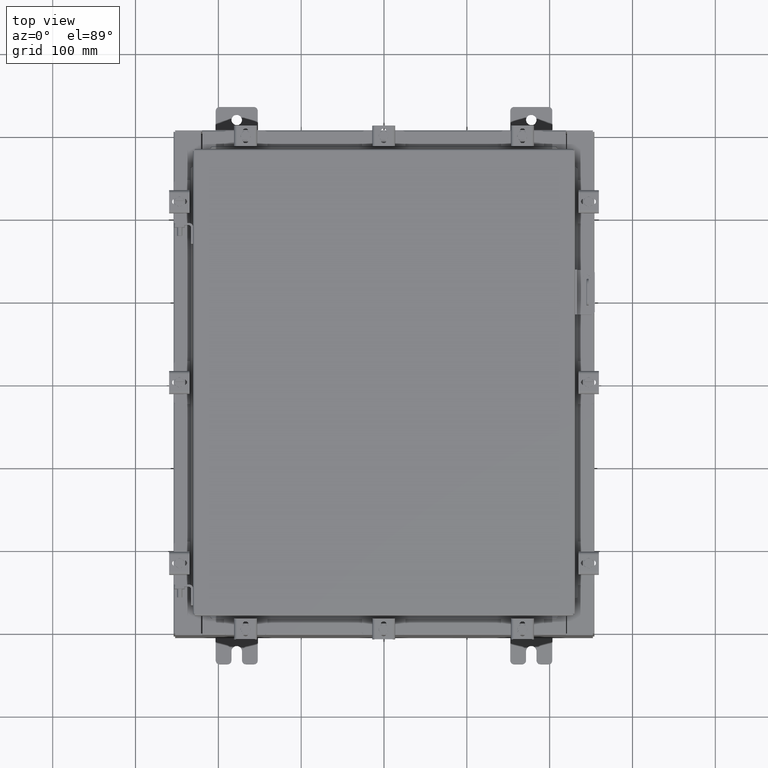
[diagram: clean part render]
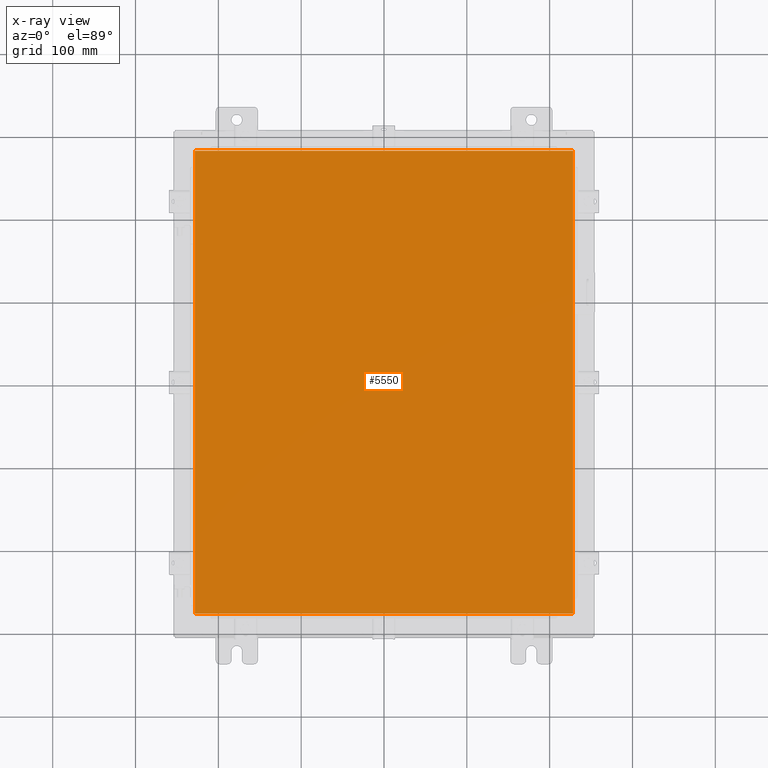
[diagram: x-ray — body ghosted, one internal face saturated and labeled with its STEP entity id]
A machine part, top view, then the same camera in x-ray: the body is ghosted and one INTERNAL B-rep face — a face not visible from any outside direction — is saturated and labeled: STEP entity #5550.
In plain terms, the highlighted planar face has unit normal (0, 0, -1).
Its self-contained STEP definition (entity closure, byte-faithful):
#695 = EDGE_CURVE ( 'NONE', #8606, #1227, #16235, .T. ) ;
#1227 = VERTEX_POINT ( 'NONE', #12458 ) ;
#1233 = EDGE_LOOP ( 'NONE', ( #14601, #22116, #1803, #3613 ) ) ;
#1366 = VERTEX_POINT ( 'NONE', #9494 ) ;
#1803 = ORIENTED_EDGE ( 'NONE', *, *, #6832, .F. ) ;
#3613 = ORIENTED_EDGE ( 'NONE', *, *, #13175, .F. ) ;
#4970 = EDGE_CURVE ( 'NONE', #15115, #8606, #7346, .T. ) ;
#5550 = ADVANCED_FACE ( 'NONE', ( #11968 ), #17239, .T. ) ;
#5916 = VECTOR ( 'NONE', #7907, 39.37007874015748100 ) ;
#6545 = AXIS2_PLACEMENT_3D ( 'NONE', #13595, #6768, #19022 ) ;
#6768 = DIRECTION ( 'NONE',  ( 0.0000000000000000000, 0.0000000000000000000, -1.000000000000000000 ) ) ;
#6832 = EDGE_CURVE ( 'NONE', #1366, #15115, #20412, .T. ) ;
#7346 = LINE ( 'NONE', #10051, #16094 ) ;
#7551 = CARTESIAN_POINT ( 'NONE',  ( 8.990299999999999500, -11.00630000000000000, -0.07470000000000073800 ) ) ;
#7740 = CARTESIAN_POINT ( 'NONE',  ( 8.990299999999999500, -11.00630000000000000, -0.07470000000000000300 ) ) ;
#7907 = DIRECTION ( 'NONE',  ( 0.0000000000000000000, -1.000000000000000000, 0.0000000000000000000 ) ) ;
#8606 = VERTEX_POINT ( 'NONE', #7740 ) ;
#9494 = CARTESIAN_POINT ( 'NONE',  ( -8.990299999999999500, 11.00630000000000000, -0.07470000000000000300 ) ) ;
#10051 = CARTESIAN_POINT ( 'NONE',  ( -8.990299999999999500, -11.00630000000000100, -0.07470000000000019700 ) ) ;
#11815 = DIRECTION ( 'NONE',  ( -1.000000000000000000, -0.0000000000000000000, -0.0000000000000000000 ) ) ;
#11816 = DIRECTION ( 'NONE',  ( 1.000000000000000000, -0.0000000000000000000, -0.0000000000000000000 ) ) ;
#11968 = FACE_OUTER_BOUND ( 'NONE', #1233, .T. ) ;
#12458 = CARTESIAN_POINT ( 'NONE',  ( 8.990299999999997700, 11.00630000000000000, -0.07470000000000000300 ) ) ;
#12925 = LINE ( 'NONE', #20528, #18128 ) ;
#13175 = EDGE_CURVE ( 'NONE', #1227, #1366, #12925, .T. ) ;
#13595 = CARTESIAN_POINT ( 'NONE',  ( 0.0000000000000000000, 0.0000000000000000000, -0.07470000000000000300 ) ) ;
#14601 = ORIENTED_EDGE ( 'NONE', *, *, #695, .F. ) ;
#15115 = VERTEX_POINT ( 'NONE', #18243 ) ;
#16094 = VECTOR ( 'NONE', #11816, 39.37007874015748100 ) ;
#16235 = LINE ( 'NONE', #7551, #20869 ) ;
#17239 = PLANE ( 'NONE',  #6545 ) ;
#18128 = VECTOR ( 'NONE', #11815, 39.37007874015748100 ) ;
#18243 = CARTESIAN_POINT ( 'NONE',  ( -8.990299999999997700, -11.00630000000000100, -0.07470000000000000300 ) ) ;
#19022 = DIRECTION ( 'NONE',  ( -1.000000000000000000, 0.0000000000000000000, -0.0000000000000000000 ) ) ;
#19306 = DIRECTION ( 'NONE',  ( 0.0000000000000000000, 1.000000000000000000, 0.0000000000000000000 ) ) ;
#20158 = CARTESIAN_POINT ( 'NONE',  ( -8.990299999999999500, 11.00630000000000100, -0.07470000000000019700 ) ) ;
#20412 = LINE ( 'NONE', #20158, #5916 ) ;
#20528 = CARTESIAN_POINT ( 'NONE',  ( 8.990299999999999500, 11.00630000000000000, -0.07470000000000019700 ) ) ;
#20869 = VECTOR ( 'NONE', #19306, 39.37007874015748100 ) ;
#22116 = ORIENTED_EDGE ( 'NONE', *, *, #4970, .F. ) ;